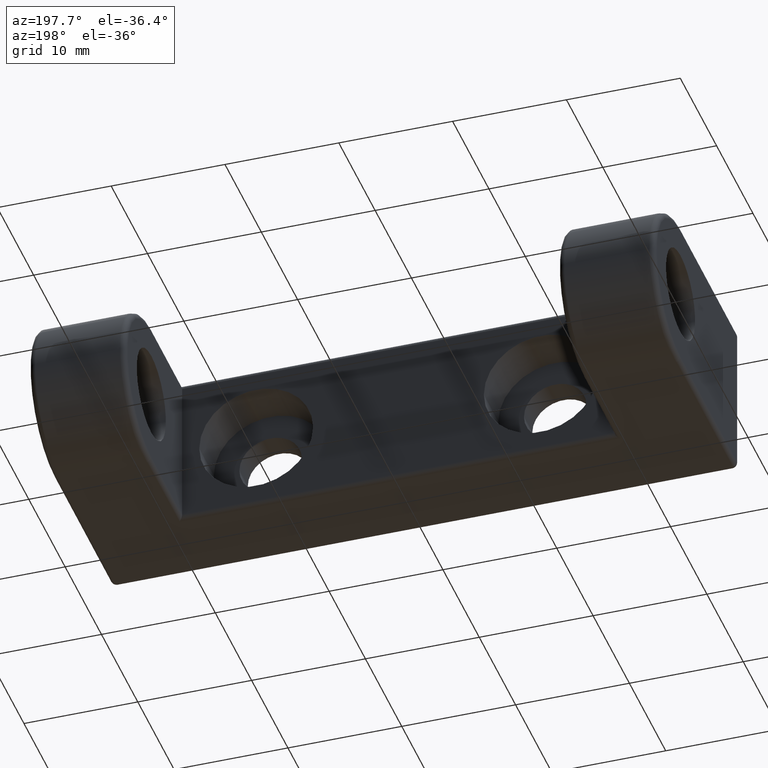
[diagram: clean part render]
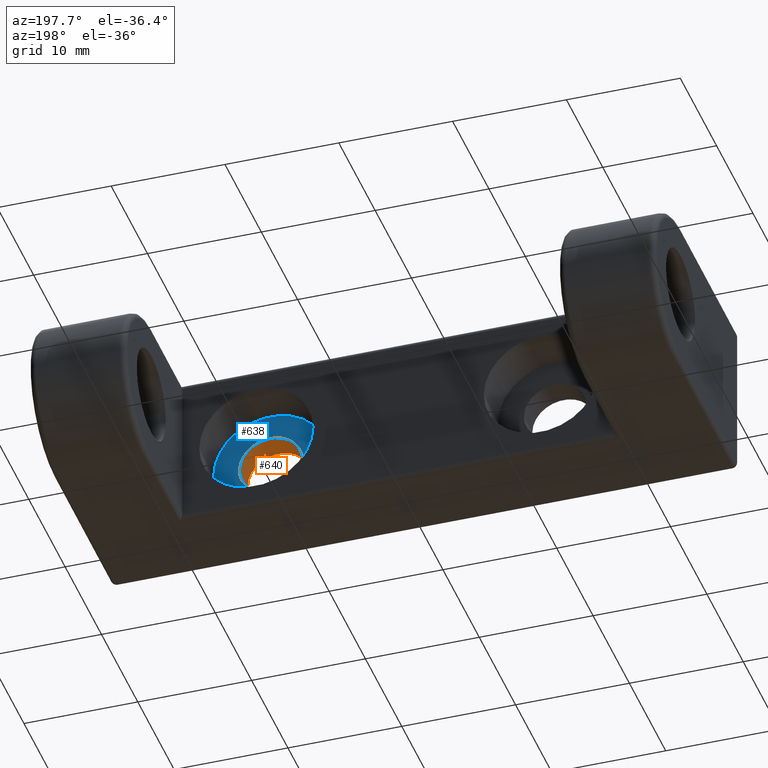
[diagram: same view with the hole feature highlighted: cylindrical wall and planar end face, labeled with their STEP entity ids]
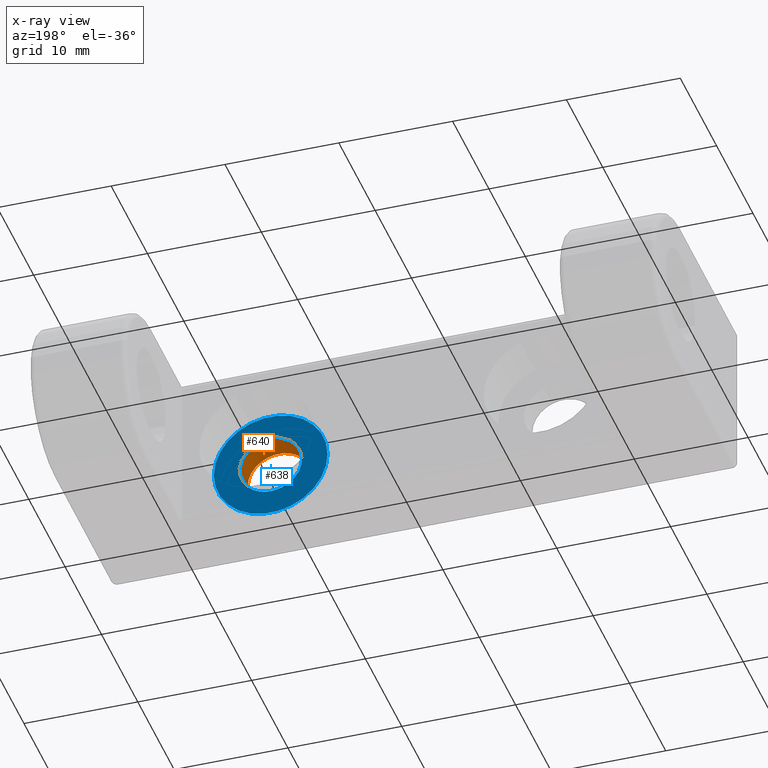
[diagram: x-ray of the same camera — body ghosted, the hole faces saturated]
A machine part, auxiliary view. The highlighted faces form one hole feature of diameter 5.5 mm: the cylindrical wall (entity #640, orange) and its adjacent planar end face (entity #638, blue) — they share a circular edge in the B-rep.
The next image is the same camera in x-ray (body ghosted, the hole faces saturated) — the bore reads through the body.
Wall:
#35=FACE_BOUND('',#155,.T.);
#94=FACE_OUTER_BOUND('',#154,.T.);
#154=EDGE_LOOP('',(#558));
#155=EDGE_LOOP('',(#559));
#205=CIRCLE('',#723,2.75);
#209=CIRCLE('',#731,2.75);
#325=VERTEX_POINT('',#1116);
#329=VERTEX_POINT('',#1128);
#407=EDGE_CURVE('',#325,#325,#205,.T.);
#411=EDGE_CURVE('',#329,#329,#209,.T.);
#558=ORIENTED_EDGE('',*,*,#407,.T.);
#559=ORIENTED_EDGE('',*,*,#411,.T.);
#598=CYLINDRICAL_SURFACE('',#733,2.75);
#640=ADVANCED_FACE('',(#94,#35),#598,.F.);
#723=AXIS2_PLACEMENT_3D('',#1117,#927,#928);
#731=AXIS2_PLACEMENT_3D('',#1129,#943,#944);
#733=AXIS2_PLACEMENT_3D('',#1131,#947,#948);
#927=DIRECTION('center_axis',(0.,-1.,0.));
#928=DIRECTION('ref_axis',(1.,-3.50596744618471E-16,0.));
#943=DIRECTION('center_axis',(3.50596744618471E-16,1.,0.));
#944=DIRECTION('ref_axis',(1.,-3.50596744618471E-16,0.));
#947=DIRECTION('center_axis',(3.50596744618471E-16,1.,0.));
#948=DIRECTION('ref_axis',(1.,-3.50596744618471E-16,0.));
#1116=CARTESIAN_POINT('',(15.25,-14.05,3.36777869765522E-16));
#1117=CARTESIAN_POINT('Origin',(12.5,-14.05,0.));
#1128=CARTESIAN_POINT('',(9.74999999999999,-11.75,3.36777869765522E-16));
#1129=CARTESIAN_POINT('Origin',(12.5,-11.75,0.));
#1131=CARTESIAN_POINT('Origin',(12.5,-68.9872435695795,0.));
End face:
#33=FACE_BOUND('',#151,.T.);
#48=PLANE('',#729);
#92=FACE_OUTER_BOUND('',#150,.T.);
#150=EDGE_LOOP('',(#554));
#151=EDGE_LOOP('',(#555));
#208=CIRCLE('',#730,5.);
#209=CIRCLE('',#731,2.75);
#328=VERTEX_POINT('',#1126);
#329=VERTEX_POINT('',#1128);
#410=EDGE_CURVE('',#328,#328,#208,.T.);
#411=EDGE_CURVE('',#329,#329,#209,.T.);
#554=ORIENTED_EDGE('',*,*,#410,.T.);
#555=ORIENTED_EDGE('',*,*,#411,.F.);
#638=ADVANCED_FACE('',(#92,#33),#48,.T.);
#729=AXIS2_PLACEMENT_3D('',#1125,#939,#940);
#730=AXIS2_PLACEMENT_3D('',#1127,#941,#942);
#731=AXIS2_PLACEMENT_3D('',#1129,#943,#944);
#939=DIRECTION('center_axis',(3.50596744618471E-16,1.,0.));
#940=DIRECTION('ref_axis',(1.,-3.5527136788005E-16,0.));
#941=DIRECTION('center_axis',(3.50596744618471E-16,1.,0.));
#942=DIRECTION('ref_axis',(1.,-3.50596744618471E-16,0.));
#943=DIRECTION('center_axis',(3.50596744618471E-16,1.,0.));
#944=DIRECTION('ref_axis',(1.,-3.50596744618471E-16,0.));
#1125=CARTESIAN_POINT('Origin',(12.5,-11.75,0.));
#1126=CARTESIAN_POINT('',(17.5,-11.75,0.));
#1127=CARTESIAN_POINT('Origin',(12.5,-11.75,0.));
#1128=CARTESIAN_POINT('',(9.74999999999999,-11.75,3.36777869765522E-16));
#1129=CARTESIAN_POINT('Origin',(12.5,-11.75,0.));